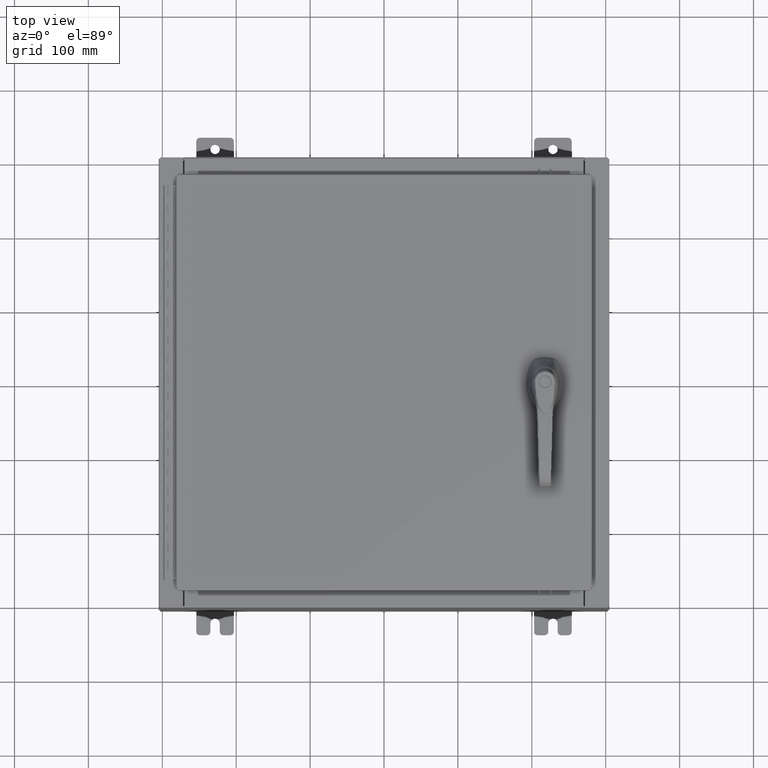
[diagram: clean part render]
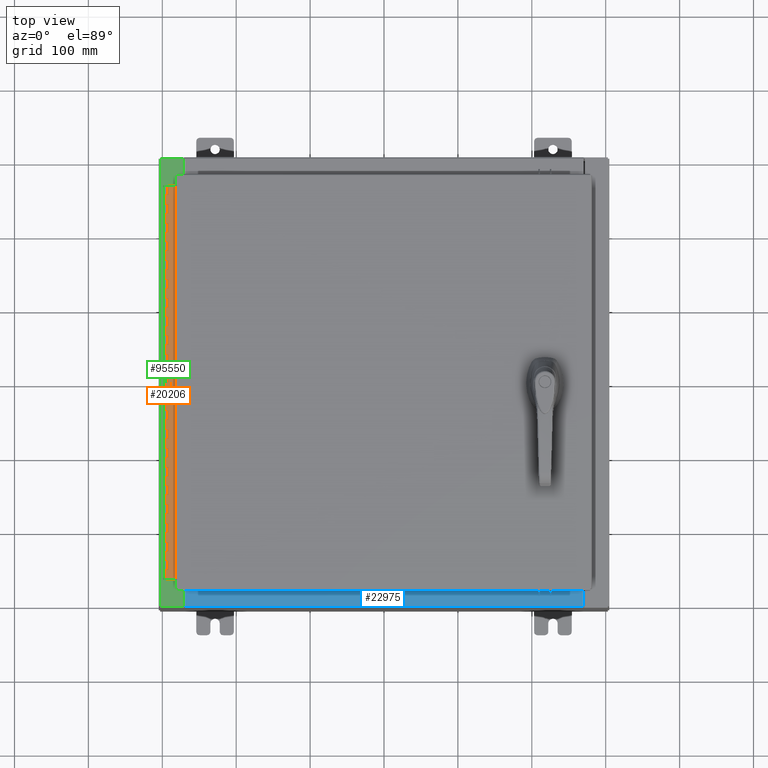
[diagram: same view with three faces highlighted in distinct colors, each labeled with its STEP entity id]
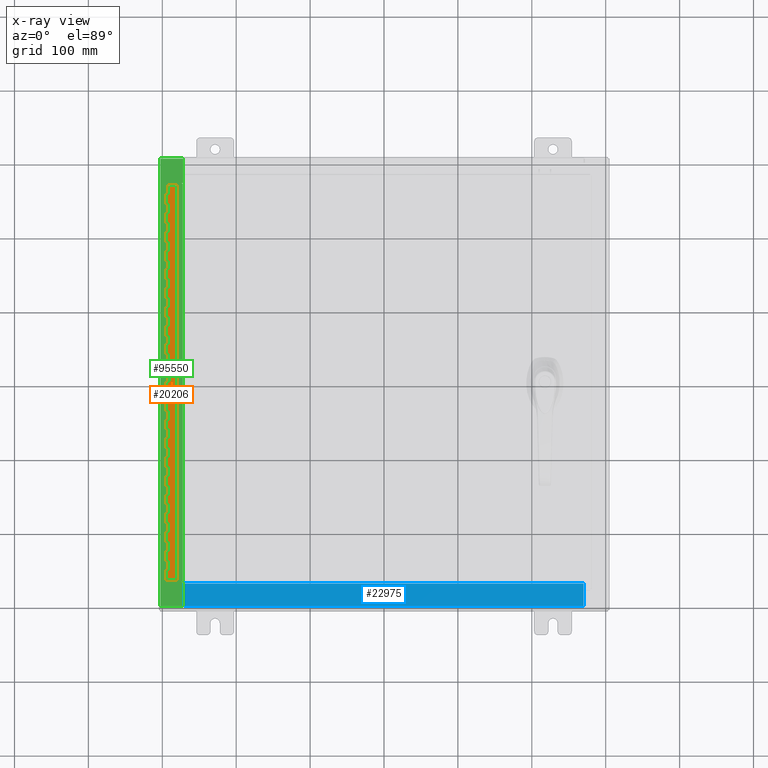
[diagram: x-ray of the same camera — body ghosted, the three highlighted faces saturated]
A machine part, top view with three faces highlighted in distinct colors.
The next image is the same camera in x-ray (body ghosted, the three faces saturated) — at least one of them is partly hidden behind the body in this view.
Their STEP definitions:

[orange] entity #20206 — the highlighted planar face has unit normal (-0, -0, 1).
#487 = EDGE_LOOP ( 'NONE', ( #104713, #79192, #28717, #11747, #99465, #87481, #99655, #96424, #78929, #60696, #97652, #31700, #35424, #110039, #38362, #74757, #55107, #99359, #49436, #80856, #6848, #100603, #17194, #56918, #13902, #101669, #40833, #17931, #82772, #83507, #79073, #49316, #106446, #14870, #39563, #86278, #33803, #62675, #20230, #66479, #107243, #75169, #110660, #63958, #8531, #16885, #104266, #42186, #94255, #105512, #19192, #63513, #2632, #48905, #100723, #110553, #84265, #63669, #68383, #109587, #108424, #71162, #18691, #27247, #89202, #48634, #69188, #57280, #92814, #86869, #19043, #22100, #20004, #47349, #94052, #107989, #1371, #68816, #77054, #94772, #11037, #23610, #66406, #24382, #68171, #63289 ) ) ;
#631 = CARTESIAN_POINT ( 'NONE',  ( -0.6869999999999973900, 0.8004999999999995500, -13.50000000000000000 ) ) ;
#707 = VECTOR ( 'NONE', #15026, 39.37007874015748100 ) ;
#853 = CARTESIAN_POINT ( 'NONE',  ( -0.6869999999999982800, 0.5504999999999997700, -16.00000000000000000 ) ) ;
#1008 = DIRECTION ( 'NONE',  ( 0.0000000000000000000, -0.0000000000000000000, -1.000000000000000000 ) ) ;
#1178 = VECTOR ( 'NONE', #91212, 39.37007874015748100 ) ;
#1349 = VERTEX_POINT ( 'NONE', #34714 ) ;
#1371 = ORIENTED_EDGE ( 'NONE', *, *, #30157, .T. ) ;
#1407 = LINE ( 'NONE', #50277, #90812 ) ;
#1450 = EDGE_CURVE ( 'NONE', #47423, #109354, #48600, .T. ) ;
#1538 = LINE ( 'NONE', #72073, #90951 ) ;
#1683 = LINE ( 'NONE', #14377, #85737 ) ;
#1869 = CARTESIAN_POINT ( 'NONE',  ( -0.6869999999999982800, 0.5504999999999997700, -19.00000000000000000 ) ) ;
#2009 = CARTESIAN_POINT ( 'NONE',  ( -0.6869999999999973900, 0.8004999999999995500, -6.000000000000000900 ) ) ;
#2048 = VERTEX_POINT ( 'NONE', #62749 ) ;
#2070 = CARTESIAN_POINT ( 'NONE',  ( -0.6869999999999973900, 0.8004999999999995500, -0.5000000000000000000 ) ) ;
#2324 = VECTOR ( 'NONE', #75940, 39.37007874015748100 ) ;
#2340 = DIRECTION ( 'NONE',  ( 3.389037039080723100E-015, 1.000000000000000000, -0.0000000000000000000 ) ) ;
#2632 = ORIENTED_EDGE ( 'NONE', *, *, #10474, .T. ) ;
#3060 = VECTOR ( 'NONE', #67879, 39.37007874015748100 ) ;
#3270 = VERTEX_POINT ( 'NONE', #61484 ) ;
#3368 = FACE_OUTER_BOUND ( 'NONE', #487, .T. ) ;
#3393 = CARTESIAN_POINT ( 'NONE',  ( -0.6869999999999973900, 0.8004999999999995500, -17.99999999999999600 ) ) ;
#3962 = CARTESIAN_POINT ( 'NONE',  ( -0.6869999999999978300, 0.6754999999999996600, -6.000000000000000900 ) ) ;
#3964 = VERTEX_POINT ( 'NONE', #97046 ) ;
#4020 = LINE ( 'NONE', #32330, #44752 ) ;
#4190 = CARTESIAN_POINT ( 'NONE',  ( -0.6869999999999982800, 0.5504999999999997700, -14.49999999999999800 ) ) ;
#4234 = VERTEX_POINT ( 'NONE', #56510 ) ;
#4365 = CARTESIAN_POINT ( 'NONE',  ( -0.6869999999999982800, 0.5504999999999997700, -18.50000000000000000 ) ) ;
#4564 = CARTESIAN_POINT ( 'NONE',  ( -0.6869999999999973900, 0.8004999999999995500, -2.999999999999999600 ) ) ;
#4588 = VERTEX_POINT ( 'NONE', #1869 ) ;
#4621 = CARTESIAN_POINT ( 'NONE',  ( -0.6869999999999982800, 0.5504999999999997700, -16.50000000000000000 ) ) ;
#5619 = DIRECTION ( 'NONE',  ( 3.389037039080723100E-015, 1.000000000000000000, -0.0000000000000000000 ) ) ;
#5819 = EDGE_CURVE ( 'NONE', #52758, #45710, #52344, .T. ) ;
#6339 = DIRECTION ( 'NONE',  ( 0.0000000000000000000, 0.0000000000000000000, 1.000000000000000000 ) ) ;
#6591 = VECTOR ( 'NONE', #36233, 39.37007874015748100 ) ;
#6848 = ORIENTED_EDGE ( 'NONE', *, *, #42911, .T. ) ;
#7088 = LINE ( 'NONE', #10528, #70854 ) ;
#7197 = CARTESIAN_POINT ( 'NONE',  ( -0.6869999999999982800, 0.5504999999999997700, -8.500000000000000000 ) ) ;
#7494 = CARTESIAN_POINT ( 'NONE',  ( -0.6869999999999998300, 0.07549999999999991400, 0.0000000000000000000 ) ) ;
#7502 = LINE ( 'NONE', #50721, #96956 ) ;
#7866 = VERTEX_POINT ( 'NONE', #100251 ) ;
#8093 = VERTEX_POINT ( 'NONE', #85913 ) ;
#8221 = LINE ( 'NONE', #54120, #92253 ) ;
#8268 = DIRECTION ( 'NONE',  ( -3.389037039080723100E-015, -1.000000000000000000, 0.0000000000000000000 ) ) ;
#8406 = VERTEX_POINT ( 'NONE', #76664 ) ;
#8531 = ORIENTED_EDGE ( 'NONE', *, *, #58520, .T. ) ;
#8564 = DIRECTION ( 'NONE',  ( 3.369016658928398200E-015, 1.000000000000000000, 0.0000000000000000000 ) ) ;
#9080 = LINE ( 'NONE', #53073, #55200 ) ;
#9275 = CARTESIAN_POINT ( 'NONE',  ( -0.6869999999999978300, 0.6754999999999996600, -20.00000000000000000 ) ) ;
#9366 = CARTESIAN_POINT ( 'NONE',  ( -0.6869999999999982800, 0.5504999999999997700, -7.499999999999999100 ) ) ;
#9386 = LINE ( 'NONE', #48832, #32481 ) ;
#9415 = VERTEX_POINT ( 'NONE', #42736 ) ;
#10008 = EDGE_CURVE ( 'NONE', #59093, #106166, #111466, .T. ) ;
#10474 = EDGE_CURVE ( 'NONE', #47448, #9415, #87058, .T. ) ;
#10528 = CARTESIAN_POINT ( 'NONE',  ( -0.6869999999999973900, 0.8004999999999995500, -11.50000000000000000 ) ) ;
#10626 = DIRECTION ( 'NONE',  ( -3.389037039080723100E-015, -1.000000000000000000, 0.0000000000000000000 ) ) ;
#10874 = LINE ( 'NONE', #37307, #31270 ) ;
#11037 = ORIENTED_EDGE ( 'NONE', *, *, #44848, .T. ) ;
#11181 = VERTEX_POINT ( 'NONE', #4190 ) ;
#11205 = VECTOR ( 'NONE', #62625, 39.37007874015748100 ) ;
#11483 = VERTEX_POINT ( 'NONE', #18464 ) ;
#11747 = ORIENTED_EDGE ( 'NONE', *, *, #97759, .F. ) ;
#11802 = DIRECTION ( 'NONE',  ( 3.389037039080723100E-015, 1.000000000000000000, -0.0000000000000000000 ) ) ;
#12021 = CARTESIAN_POINT ( 'NONE',  ( -0.6869999999999982800, 0.5504999999999997700, -6.000000000000000900 ) ) ;
#12167 = LINE ( 'NONE', #28547, #107099 ) ;
#12279 = EDGE_CURVE ( 'NONE', #88878, #103650, #89678, .T. ) ;
#12326 = LINE ( 'NONE', #72824, #32754 ) ;
#12427 = VERTEX_POINT ( 'NONE', #81185 ) ;
#12474 = EDGE_CURVE ( 'NONE', #36092, #93655, #12326, .T. ) ;
#12730 = EDGE_CURVE ( 'NONE', #59089, #111717, #88297, .T. ) ;
#12761 = CARTESIAN_POINT ( 'NONE',  ( -0.6869999999999978300, 0.6754999999999996600, -21.00000000000000000 ) ) ;
#12981 = CARTESIAN_POINT ( 'NONE',  ( -0.6869999999999978300, 0.6754999999999996600, -14.49999999999999800 ) ) ;
#13432 = CARTESIAN_POINT ( 'NONE',  ( -0.6869999999999982800, 0.5504999999999997700, -6.499999999999999100 ) ) ;
#13575 = CARTESIAN_POINT ( 'NONE',  ( -0.6870000000000022800, -0.6245000000000003900, 0.0000000000000000000 ) ) ;
#13618 = CARTESIAN_POINT ( 'NONE',  ( -0.6869999999999973900, 0.8004999999999995500, -2.000000000000000000 ) ) ;
#13889 = VECTOR ( 'NONE', #108358, 39.37007874015748100 ) ;
#13902 = ORIENTED_EDGE ( 'NONE', *, *, #20251, .T. ) ;
#14037 = DIRECTION ( 'NONE',  ( 0.0000000000000000000, -0.0000000000000000000, -1.000000000000000000 ) ) ;
#14373 = VECTOR ( 'NONE', #57581, 39.37007874015748100 ) ;
#14377 = CARTESIAN_POINT ( 'NONE',  ( -0.6869999999999973900, 0.8004999999999995500, -1.499999999999999800 ) ) ;
#14763 = DIRECTION ( 'NONE',  ( 0.0000000000000000000, 0.0000000000000000000, 1.000000000000000000 ) ) ;
#14870 = ORIENTED_EDGE ( 'NONE', *, *, #30292, .F. ) ;
#14893 = DIRECTION ( 'NONE',  ( 0.0000000000000000000, 0.0000000000000000000, 1.000000000000000000 ) ) ;
#14980 = CARTESIAN_POINT ( 'NONE',  ( -0.6869999999999982800, 0.5504999999999997700, -20.50000000000000400 ) ) ;
#15026 = DIRECTION ( 'NONE',  ( 0.0000000000000000000, 0.0000000000000000000, 1.000000000000000000 ) ) ;
#15183 = CARTESIAN_POINT ( 'NONE',  ( -0.6869999999999978300, 0.6754999999999996600, -18.50000000000000000 ) ) ;
#15242 = CARTESIAN_POINT ( 'NONE',  ( -0.6869999999999973900, 0.8004999999999995500, -11.99999999999999800 ) ) ;
#15393 = CARTESIAN_POINT ( 'NONE',  ( -0.6869999999999973900, 0.8004999999999995500, -6.499999999999999100 ) ) ;
#15395 = LINE ( 'NONE', #58017, #38485 ) ;
#15495 = CARTESIAN_POINT ( 'NONE',  ( -0.6869999999999978300, 0.6754999999999996600, 0.0000000000000000000 ) ) ;
#15510 = VERTEX_POINT ( 'NONE', #9366 ) ;
#15873 = DIRECTION ( 'NONE',  ( 0.0000000000000000000, 0.0000000000000000000, 1.000000000000000000 ) ) ;
#15877 = VECTOR ( 'NONE', #23906, 39.37007874015748100 ) ;
#16118 = DIRECTION ( 'NONE',  ( 3.389037039080723100E-015, 1.000000000000000000, -0.0000000000000000000 ) ) ;
#16142 = LINE ( 'NONE', #3393, #88053 ) ;
#16162 = EDGE_CURVE ( 'NONE', #70152, #103650, #45883, .T. ) ;
#16329 = VERTEX_POINT ( 'NONE', #79261 ) ;
#16401 = VERTEX_POINT ( 'NONE', #96947 ) ;
#16476 = LINE ( 'NONE', #54774, #39569 ) ;
#16707 = CARTESIAN_POINT ( 'NONE',  ( -0.6869999999999982800, 0.5504999999999997700, -10.50000000000000000 ) ) ;
#16767 = CARTESIAN_POINT ( 'NONE',  ( -0.6869999999999973900, 0.8004999999999995500, -16.00000000000000000 ) ) ;
#16885 = ORIENTED_EDGE ( 'NONE', *, *, #46594, .F. ) ;
#17194 = ORIENTED_EDGE ( 'NONE', *, *, #20285, .F. ) ;
#17362 = VERTEX_POINT ( 'NONE', #38434 ) ;
#17420 = EDGE_CURVE ( 'NONE', #27447, #68941, #93165, .T. ) ;
#17527 = CARTESIAN_POINT ( 'NONE',  ( -0.6869999999999978300, 0.6754999999999996600, -21.00000000000000000 ) ) ;
#17564 = LINE ( 'NONE', #73483, #107000 ) ;
#17695 = DIRECTION ( 'NONE',  ( 0.0000000000000000000, -0.0000000000000000000, -1.000000000000000000 ) ) ;
#17876 = VECTOR ( 'NONE', #6339, 39.37007874015748100 ) ;
#17931 = ORIENTED_EDGE ( 'NONE', *, *, #69796, .F. ) ;
#18119 = CARTESIAN_POINT ( 'NONE',  ( -0.6869999999999978300, 0.6754999999999996600, -14.99999999999999800 ) ) ;
#18237 = CARTESIAN_POINT ( 'NONE',  ( -0.6869999999999978300, 0.6754999999999996600, -2.000000000000000000 ) ) ;
#18464 = CARTESIAN_POINT ( 'NONE',  ( -0.6869999999999978300, 0.6754999999999996600, -1.000000000000000000 ) ) ;
#18536 = LINE ( 'NONE', #112374, #61932 ) ;
#18691 = ORIENTED_EDGE ( 'NONE', *, *, #101673, .F. ) ;
#18757 = VECTOR ( 'NONE', #76055, 39.37007874015748100 ) ;
#19004 = LINE ( 'NONE', #77567, #85470 ) ;
#19043 = ORIENTED_EDGE ( 'NONE', *, *, #85372, .F. ) ;
#19192 = ORIENTED_EDGE ( 'NONE', *, *, #22866, .F. ) ;
#19204 = VECTOR ( 'NONE', #82742, 39.37007874015748100 ) ;
#19213 = DIRECTION ( 'NONE',  ( 0.0000000000000000000, 0.0000000000000000000, 1.000000000000000000 ) ) ;
#19320 = CARTESIAN_POINT ( 'NONE',  ( -0.6869999999999978300, 0.6754999999999996600, -3.500000000000000000 ) ) ;
#19658 = EDGE_CURVE ( 'NONE', #76483, #65155, #7502, .T. ) ;
#20004 = ORIENTED_EDGE ( 'NONE', *, *, #19658, .T. ) ;
#20090 = VECTOR ( 'NONE', #56169, 39.37007874015748100 ) ;
#20206 = ADVANCED_FACE ( 'NONE', ( #3368 ), #29853, .T. ) ;
#20230 = ORIENTED_EDGE ( 'NONE', *, *, #103175, .F. ) ;
#20251 = EDGE_CURVE ( 'NONE', #3270, #68941, #69883, .T. ) ;
#20285 = EDGE_CURVE ( 'NONE', #83688, #60570, #90121, .T. ) ;
#20394 = DIRECTION ( 'NONE',  ( 3.389037039080723100E-015, 1.000000000000000000, -0.0000000000000000000 ) ) ;
#20483 = EDGE_CURVE ( 'NONE', #17362, #47423, #41370, .T. ) ;
#21046 = CARTESIAN_POINT ( 'NONE',  ( -0.6869999999999978300, 0.6754999999999996600, -0.5000000000000000000 ) ) ;
#21142 = VECTOR ( 'NONE', #32569, 39.37007874015748100 ) ;
#21428 = EDGE_CURVE ( 'NONE', #17362, #98217, #79239, .T. ) ;
#21838 = CARTESIAN_POINT ( 'NONE',  ( -0.6869999999999982800, 0.5504999999999997700, -17.50000000000000000 ) ) ;
#21942 = VECTOR ( 'NONE', #1008, 39.37007874015748100 ) ;
#21948 = CARTESIAN_POINT ( 'NONE',  ( -0.6869999999999982800, 0.5504999999999997700, -7.000000000000000000 ) ) ;
#22100 = ORIENTED_EDGE ( 'NONE', *, *, #88375, .F. ) ;
#22128 = EDGE_CURVE ( 'NONE', #75201, #80545, #41169, .T. ) ;
#22161 = EDGE_CURVE ( 'NONE', #2048, #53623, #81789, .T. ) ;
#22641 = EDGE_CURVE ( 'NONE', #41656, #65155, #103395, .T. ) ;
#22779 = CARTESIAN_POINT ( 'NONE',  ( -0.6869999999999982800, 0.5504999999999997700, -17.50000000000000000 ) ) ;
#22866 = EDGE_CURVE ( 'NONE', #64265, #83467, #46448, .T. ) ;
#23303 = EDGE_CURVE ( 'NONE', #43584, #45477, #7088, .T. ) ;
#23437 = EDGE_CURVE ( 'NONE', #83780, #36563, #1683, .T. ) ;
#23610 = ORIENTED_EDGE ( 'NONE', *, *, #33268, .F. ) ;
#23906 = DIRECTION ( 'NONE',  ( 0.0000000000000000000, -0.0000000000000000000, -1.000000000000000000 ) ) ;
#24016 = DIRECTION ( 'NONE',  ( 3.389037039080723100E-015, 1.000000000000000000, -0.0000000000000000000 ) ) ;
#24382 = ORIENTED_EDGE ( 'NONE', *, *, #57289, .F. ) ;
#24911 = CARTESIAN_POINT ( 'NONE',  ( -0.6869999999999982800, 0.5504999999999997700, -11.99999999999999800 ) ) ;
#25385 = LINE ( 'NONE', #15242, #94501 ) ;
#26073 = VECTOR ( 'NONE', #28908, 39.37007874015748100 ) ;
#26283 = CARTESIAN_POINT ( 'NONE',  ( -0.6869999999999978300, 0.6754999999999996600, -2.500000000000000000 ) ) ;
#26441 = CARTESIAN_POINT ( 'NONE',  ( -0.6869999999999982800, 0.5504999999999997700, -13.50000000000000000 ) ) ;
#26474 = VECTOR ( 'NONE', #50313, 39.37007874015748100 ) ;
#26490 = VECTOR ( 'NONE', #99546, 39.37007874015748100 ) ;
#26635 = VERTEX_POINT ( 'NONE', #74531 ) ;
#26682 = DIRECTION ( 'NONE',  ( 0.0000000000000000000, 0.0000000000000000000, 1.000000000000000000 ) ) ;
#26796 = VECTOR ( 'NONE', #72899, 39.37007874015748100 ) ;
#26852 = EDGE_CURVE ( 'NONE', #45677, #65156, #45083, .T. ) ;
#26939 = DIRECTION ( 'NONE',  ( 0.0000000000000000000, 0.0000000000000000000, 1.000000000000000000 ) ) ;
#27019 = VERTEX_POINT ( 'NONE', #40147 ) ;
#27097 = AXIS2_PLACEMENT_3D ( 'NONE', #62504, #47289, #107884 ) ;
#27247 = ORIENTED_EDGE ( 'NONE', *, *, #12474, .F. ) ;
#27426 = LINE ( 'NONE', #74743, #32859 ) ;
#27447 = VERTEX_POINT ( 'NONE', #104448 ) ;
#27547 = CARTESIAN_POINT ( 'NONE',  ( -0.6869999999999973900, 0.8004999999999995500, -9.500000000000000000 ) ) ;
#27577 = CARTESIAN_POINT ( 'NONE',  ( -0.6869999999999973900, 0.8004999999999995500, -14.00000000000000000 ) ) ;
#27764 = EDGE_CURVE ( 'NONE', #1349, #28549, #88349, .T. ) ;
#27960 = VECTOR ( 'NONE', #34290, 39.37007874015748100 ) ;
#27995 = DIRECTION ( 'NONE',  ( 0.0000000000000000000, -0.0000000000000000000, -1.000000000000000000 ) ) ;
#28206 = CARTESIAN_POINT ( 'NONE',  ( -0.6869999999999978300, 0.6754999999999996600, -9.000000000000000000 ) ) ;
#28252 = EDGE_CURVE ( 'NONE', #35863, #8406, #84260, .T. ) ;
#28424 = CARTESIAN_POINT ( 'NONE',  ( -0.6869999999999978300, 0.6754999999999996600, -12.49999999999999800 ) ) ;
#28547 = CARTESIAN_POINT ( 'NONE',  ( -0.6869999999999973900, 0.8004999999999995500, -19.00000000000000000 ) ) ;
#28549 = VERTEX_POINT ( 'NONE', #16707 ) ;
#28717 = ORIENTED_EDGE ( 'NONE', *, *, #93454, .F. ) ;
#28862 = DIRECTION ( 'NONE',  ( 3.389037039080723100E-015, 1.000000000000000000, -0.0000000000000000000 ) ) ;
#28908 = DIRECTION ( 'NONE',  ( -3.389037039080723100E-015, -1.000000000000000000, 0.0000000000000000000 ) ) ;
#29421 = EDGE_CURVE ( 'NONE', #4588, #32556, #12167, .T. ) ;
#29853 = PLANE ( 'NONE',  #27097 ) ;
#29978 = CARTESIAN_POINT ( 'NONE',  ( -0.6869999999999982800, 0.5504999999999997700, -10.00000000000000000 ) ) ;
#30105 = VERTEX_POINT ( 'NONE', #47316 ) ;
#30157 = EDGE_CURVE ( 'NONE', #35279, #91237, #17564, .T. ) ;
#30292 = EDGE_CURVE ( 'NONE', #70271, #16401, #9386, .T. ) ;
#30325 = VECTOR ( 'NONE', #102173, 39.37007874015748100 ) ;
#31237 = EDGE_CURVE ( 'NONE', #4234, #110189, #47236, .T. ) ;
#31270 = VECTOR ( 'NONE', #106573, 39.37007874015748100 ) ;
#31363 = VERTEX_POINT ( 'NONE', #93108 ) ;
#31475 = CARTESIAN_POINT ( 'NONE',  ( -0.6869999999999982800, 0.5504999999999997700, -8.000000000000000000 ) ) ;
#31700 = ORIENTED_EDGE ( 'NONE', *, *, #64639, .F. ) ;
#31877 = DIRECTION ( 'NONE',  ( -3.389037039080723100E-015, -1.000000000000000000, 0.0000000000000000000 ) ) ;
#32330 = CARTESIAN_POINT ( 'NONE',  ( -0.6869999999999973900, 0.8004999999999995500, -19.50000000000000000 ) ) ;
#32481 = VECTOR ( 'NONE', #5619, 39.37007874015748100 ) ;
#32556 = VERTEX_POINT ( 'NONE', #83083 ) ;
#32569 = DIRECTION ( 'NONE',  ( 0.0000000000000000000, -0.0000000000000000000, -1.000000000000000000 ) ) ;
#32746 = CARTESIAN_POINT ( 'NONE',  ( -0.6869999999999973900, 0.8004999999999995500, -12.49999999999999800 ) ) ;
#32754 = VECTOR ( 'NONE', #31877, 39.37007874015748100 ) ;
#32859 = VECTOR ( 'NONE', #14037, 39.37007874015748100 ) ;
#32963 = EDGE_CURVE ( 'NONE', #69233, #84363, #9080, .T. ) ;
#33268 = EDGE_CURVE ( 'NONE', #110189, #11483, #44363, .T. ) ;
#33729 = EDGE_CURVE ( 'NONE', #55058, #84363, #109307, .T. ) ;
#33784 = EDGE_CURVE ( 'NONE', #47448, #64265, #106582, .T. ) ;
#33803 = ORIENTED_EDGE ( 'NONE', *, *, #112043, .T. ) ;
#34117 = VERTEX_POINT ( 'NONE', #92429 ) ;
#34290 = DIRECTION ( 'NONE',  ( 0.0000000000000000000, -0.0000000000000000000, -1.000000000000000000 ) ) ;
#34604 = EDGE_CURVE ( 'NONE', #36563, #30105, #86218, .T. ) ;
#34714 = CARTESIAN_POINT ( 'NONE',  ( -0.6869999999999978300, 0.6754999999999996600, -10.50000000000000000 ) ) ;
#35279 = VERTEX_POINT ( 'NONE', #26283 ) ;
#35424 = ORIENTED_EDGE ( 'NONE', *, *, #5819, .T. ) ;
#35863 = VERTEX_POINT ( 'NONE', #58282 ) ;
#36092 = VERTEX_POINT ( 'NONE', #46429 ) ;
#36203 = VECTOR ( 'NONE', #53805, 39.37007874015748100 ) ;
#36233 = DIRECTION ( 'NONE',  ( 3.389037039080723100E-015, 1.000000000000000000, -0.0000000000000000000 ) ) ;
#36319 = DIRECTION ( 'NONE',  ( 0.0000000000000000000, 0.0000000000000000000, 1.000000000000000000 ) ) ;
#36563 = VERTEX_POINT ( 'NONE', #84174 ) ;
#37307 = CARTESIAN_POINT ( 'NONE',  ( -0.6869999999999978300, 0.6754999999999996600, -21.00000000000000000 ) ) ;
#37650 = VERTEX_POINT ( 'NONE', #67672 ) ;
#37844 = VECTOR ( 'NONE', #17695, 39.37007874015748100 ) ;
#38126 = DIRECTION ( 'NONE',  ( 3.389037039080723100E-015, 1.000000000000000000, -0.0000000000000000000 ) ) ;
#38362 = ORIENTED_EDGE ( 'NONE', *, *, #61856, .F. ) ;
#38434 = CARTESIAN_POINT ( 'NONE',  ( -0.6869999999999978300, 0.6754999999999996600, -9.500000000000000000 ) ) ;
#38485 = VECTOR ( 'NONE', #14763, 39.37007874015748100 ) ;
#38489 = DIRECTION ( 'NONE',  ( -3.389037039080723100E-015, -1.000000000000000000, 0.0000000000000000000 ) ) ;
#38550 = CARTESIAN_POINT ( 'NONE',  ( -0.6869999999999982800, 0.5504999999999997700, -5.500000000000000000 ) ) ;
#38646 = LINE ( 'NONE', #92750, #82031 ) ;
#38803 = LINE ( 'NONE', #84514, #21142 ) ;
#38884 = DIRECTION ( 'NONE',  ( 0.0000000000000000000, -0.0000000000000000000, -1.000000000000000000 ) ) ;
#39007 = CARTESIAN_POINT ( 'NONE',  ( -0.6869999999999978300, 0.6754999999999996600, -21.00000000000000000 ) ) ;
#39306 = EDGE_CURVE ( 'NONE', #83467, #98217, #73031, .T. ) ;
#39362 = CARTESIAN_POINT ( 'NONE',  ( -0.6869999999999982800, 0.5504999999999997700, -0.5000000000000000000 ) ) ;
#39489 = LINE ( 'NONE', #100379, #82852 ) ;
#39563 = ORIENTED_EDGE ( 'NONE', *, *, #85430, .F. ) ;
#39569 = VECTOR ( 'NONE', #88497, 39.37007874015748100 ) ;
#39629 = VECTOR ( 'NONE', #96788, 39.37007874015748100 ) ;
#40147 = CARTESIAN_POINT ( 'NONE',  ( -0.6869999999999982800, 0.5504999999999997700, -17.00000000000000000 ) ) ;
#40563 = CARTESIAN_POINT ( 'NONE',  ( -0.6869999999999982800, 0.5504999999999997700, -11.50000000000000000 ) ) ;
#40829 = LINE ( 'NONE', #41543, #109913 ) ;
#40833 = ORIENTED_EDGE ( 'NONE', *, *, #80476, .F. ) ;
#41169 = LINE ( 'NONE', #110022, #84550 ) ;
#41213 = CARTESIAN_POINT ( 'NONE',  ( -0.6869999999999978300, 0.6754999999999996600, -20.50000000000000400 ) ) ;
#41291 = LINE ( 'NONE', #68955, #104945 ) ;
#41370 = LINE ( 'NONE', #27547, #99536 ) ;
#41463 = CARTESIAN_POINT ( 'NONE',  ( -0.6869999999999998300, 0.07549999999999991400, -21.00000000000000000 ) ) ;
#41478 = LINE ( 'NONE', #88181, #61782 ) ;
#41543 = CARTESIAN_POINT ( 'NONE',  ( -0.6869999999999982800, 0.5504999999999997700, -19.50000000000000000 ) ) ;
#41646 = VECTOR ( 'NONE', #38126, 39.37007874015748100 ) ;
#41656 = VERTEX_POINT ( 'NONE', #75568 ) ;
#41914 = CARTESIAN_POINT ( 'NONE',  ( -0.6869999999999978300, 0.6754999999999996600, -19.50000000000000000 ) ) ;
#41931 = CARTESIAN_POINT ( 'NONE',  ( -0.6869999999999978300, 0.6754999999999996600, -21.00000000000000000 ) ) ;
#42186 = ORIENTED_EDGE ( 'NONE', *, *, #20483, .F. ) ;
#42202 = EDGE_CURVE ( 'NONE', #37650, #41656, #38803, .T. ) ;
#42226 = VECTOR ( 'NONE', #51062, 39.37007874015748100 ) ;
#42736 = CARTESIAN_POINT ( 'NONE',  ( -0.6869999999999978300, 0.6754999999999996600, -8.000000000000000000 ) ) ;
#42911 = EDGE_CURVE ( 'NONE', #75201, #98842, #90187, .T. ) ;
#43139 = CARTESIAN_POINT ( 'NONE',  ( -0.6869999999999978300, 0.6754999999999996600, -2.999999999999999600 ) ) ;
#43200 = VECTOR ( 'NONE', #96377, 39.37007874015748100 ) ;
#43584 = VERTEX_POINT ( 'NONE', #85616 ) ;
#43607 = CARTESIAN_POINT ( 'NONE',  ( -0.6869999999999973900, 0.8004999999999995500, -7.499999999999999100 ) ) ;
#43657 = VECTOR ( 'NONE', #26682, 39.37007874015748100 ) ;
#44063 = CARTESIAN_POINT ( 'NONE',  ( -0.6869999999999978300, 0.6754999999999996600, -21.00000000000000000 ) ) ;
#44363 = LINE ( 'NONE', #89992, #41646 ) ;
#44587 = CARTESIAN_POINT ( 'NONE',  ( -0.6869999999999982800, 0.5504999999999997700, -9.000000000000000000 ) ) ;
#44752 = VECTOR ( 'NONE', #49777, 39.37007874015748100 ) ;
#44848 = EDGE_CURVE ( 'NONE', #83780, #11483, #15395, .T. ) ;
#45017 = EDGE_CURVE ( 'NONE', #91935, #12427, #50679, .T. ) ;
#45046 = LINE ( 'NONE', #87389, #21942 ) ;
#45083 = LINE ( 'NONE', #102474, #108733 ) ;
#45477 = VERTEX_POINT ( 'NONE', #72924 ) ;
#45664 = CARTESIAN_POINT ( 'NONE',  ( -0.6869999999999978300, 0.6754999999999996600, -17.00000000000000000 ) ) ;
#45677 = VERTEX_POINT ( 'NONE', #50543 ) ;
#45710 = VERTEX_POINT ( 'NONE', #76709 ) ;
#45807 = LINE ( 'NONE', #38550, #112226 ) ;
#45883 = LINE ( 'NONE', #47445, #20090 ) ;
#45985 = LINE ( 'NONE', #26441, #37844 ) ;
#46266 = DIRECTION ( 'NONE',  ( 0.0000000000000000000, -0.0000000000000000000, -1.000000000000000000 ) ) ;
#46429 = CARTESIAN_POINT ( 'NONE',  ( -0.6869999999999978300, 0.6754999999999996600, -5.500000000000000000 ) ) ;
#46448 = LINE ( 'NONE', #7197, #3060 ) ;
#46594 = EDGE_CURVE ( 'NONE', #109354, #3964, #110114, .T. ) ;
#46863 = EDGE_CURVE ( 'NONE', #80545, #27019, #27426, .T. ) ;
#47236 = LINE ( 'NONE', #39362, #1178 ) ;
#47289 = DIRECTION ( 'NONE',  ( 1.000000000000000000, -3.369016658928398200E-015, 0.0000000000000000000 ) ) ;
#47316 = CARTESIAN_POINT ( 'NONE',  ( -0.6869999999999982800, 0.5504999999999997700, -2.000000000000000000 ) ) ;
#47349 = ORIENTED_EDGE ( 'NONE', *, *, #22641, .F. ) ;
#47423 = VERTEX_POINT ( 'NONE', #99569 ) ;
#47445 = CARTESIAN_POINT ( 'NONE',  ( -0.6869999999999973900, 0.8004999999999995500, -20.00000000000000000 ) ) ;
#47448 = VERTEX_POINT ( 'NONE', #47723 ) ;
#47699 = DIRECTION ( 'NONE',  ( 0.0000000000000000000, 0.0000000000000000000, 1.000000000000000000 ) ) ;
#47723 = CARTESIAN_POINT ( 'NONE',  ( -0.6869999999999978300, 0.6754999999999996600, -8.500000000000000000 ) ) ;
#48600 = LINE ( 'NONE', #52851, #43200 ) ;
#48634 = ORIENTED_EDGE ( 'NONE', *, *, #28252, .F. ) ;
#48696 = CARTESIAN_POINT ( 'NONE',  ( -0.6869999999999982800, 0.5504999999999997700, -21.00000000000000000 ) ) ;
#48832 = CARTESIAN_POINT ( 'NONE',  ( -0.6869999999999973900, 0.8004999999999995500, -12.99999999999999800 ) ) ;
#48905 = ORIENTED_EDGE ( 'NONE', *, *, #66466, .F. ) ;
#49087 = VECTOR ( 'NONE', #89462, 39.37007874015748100 ) ;
#49105 = LINE ( 'NONE', #72129, #26073 ) ;
#49316 = ORIENTED_EDGE ( 'NONE', *, *, #89174, .F. ) ;
#49436 = ORIENTED_EDGE ( 'NONE', *, *, #46863, .F. ) ;
#49538 = LINE ( 'NONE', #39007, #26490 ) ;
#49559 = DIRECTION ( 'NONE',  ( -3.389037039080723100E-015, -1.000000000000000000, 0.0000000000000000000 ) ) ;
#49777 = DIRECTION ( 'NONE',  ( -3.389037039080723100E-015, -1.000000000000000000, 0.0000000000000000000 ) ) ;
#50002 = LINE ( 'NONE', #4365, #70372 ) ;
#50277 = CARTESIAN_POINT ( 'NONE',  ( -0.6869999999999973900, 0.8004999999999995500, -11.00000000000000000 ) ) ;
#50313 = DIRECTION ( 'NONE',  ( 0.0000000000000000000, -0.0000000000000000000, -1.000000000000000000 ) ) ;
#50399 = CARTESIAN_POINT ( 'NONE',  ( -0.6869999999999978300, 0.6754999999999996600, -21.00000000000000000 ) ) ;
#50429 = CARTESIAN_POINT ( 'NONE',  ( -0.6869999999999982800, 0.5504999999999997700, -4.500000000000000000 ) ) ;
#50543 = CARTESIAN_POINT ( 'NONE',  ( -0.6869999999999982800, 0.5504999999999997700, -4.000000000000000000 ) ) ;
#50627 = DIRECTION ( 'NONE',  ( 0.0000000000000000000, 0.0000000000000000000, 1.000000000000000000 ) ) ;
#50679 = LINE ( 'NONE', #92709, #73717 ) ;
#50721 = CARTESIAN_POINT ( 'NONE',  ( -0.6869999999999978300, 0.6754999999999996600, -21.00000000000000000 ) ) ;
#51062 = DIRECTION ( 'NONE',  ( -3.389037039080723100E-015, -1.000000000000000000, 0.0000000000000000000 ) ) ;
#52167 = VERTEX_POINT ( 'NONE', #79600 ) ;
#52344 = LINE ( 'NONE', #79920, #72653 ) ;
#52758 = VERTEX_POINT ( 'NONE', #15183 ) ;
#52851 = CARTESIAN_POINT ( 'NONE',  ( -0.6869999999999982800, 0.5504999999999997700, -9.500000000000000000 ) ) ;
#52920 = CARTESIAN_POINT ( 'NONE',  ( -0.6869999999999982800, 0.5504999999999997700, -1.000000000000000000 ) ) ;
#53073 = CARTESIAN_POINT ( 'NONE',  ( -0.6869999999999978300, 0.6754999999999996600, -21.00000000000000000 ) ) ;
#53623 = VERTEX_POINT ( 'NONE', #3962 ) ;
#53642 = VECTOR ( 'NONE', #46266, 39.37007874015748100 ) ;
#53772 = DIRECTION ( 'NONE',  ( -3.389037039080723100E-015, -1.000000000000000000, 0.0000000000000000000 ) ) ;
#53805 = DIRECTION ( 'NONE',  ( -3.389037039080723100E-015, -1.000000000000000000, 0.0000000000000000000 ) ) ;
#53813 = CARTESIAN_POINT ( 'NONE',  ( -0.6869999999999982800, 0.5504999999999997700, -20.00000000000000000 ) ) ;
#54120 = CARTESIAN_POINT ( 'NONE',  ( -0.6869999999999982800, 0.5504999999999997700, -10.50000000000000000 ) ) ;
#54196 = CARTESIAN_POINT ( 'NONE',  ( -0.6869999999999978300, 0.6754999999999996600, -17.50000000000000000 ) ) ;
#54316 = VECTOR ( 'NONE', #88808, 39.37007874015748100 ) ;
#54603 = VECTOR ( 'NONE', #95443, 39.37007874015748100 ) ;
#54643 = CARTESIAN_POINT ( 'NONE',  ( -0.6869999999999982800, 0.5504999999999997700, -8.500000000000000000 ) ) ;
#54712 = CARTESIAN_POINT ( 'NONE',  ( -0.6869999999999973900, 0.8004999999999995500, -5.000000000000000000 ) ) ;
#54774 = CARTESIAN_POINT ( 'NONE',  ( -0.6869999999999982800, 0.5504999999999997700, -6.499999999999999100 ) ) ;
#54826 = LINE ( 'NONE', #102119, #100862 ) ;
#55058 = VERTEX_POINT ( 'NONE', #7494 ) ;
#55107 = ORIENTED_EDGE ( 'NONE', *, *, #66206, .T. ) ;
#55200 = VECTOR ( 'NONE', #26939, 39.37007874015748100 ) ;
#55991 = VECTOR ( 'NONE', #15873, 39.37007874015748100 ) ;
#56138 = VECTOR ( 'NONE', #2340, 39.37007874015748100 ) ;
#56169 = DIRECTION ( 'NONE',  ( 3.389037039080723100E-015, 1.000000000000000000, -0.0000000000000000000 ) ) ;
#56235 = CARTESIAN_POINT ( 'NONE',  ( -0.6869999999999982800, 0.5504999999999997700, -20.50000000000000400 ) ) ;
#56458 = VECTOR ( 'NONE', #56468, 39.37007874015748100 ) ;
#56468 = DIRECTION ( 'NONE',  ( 0.0000000000000000000, -0.0000000000000000000, -1.000000000000000000 ) ) ;
#56510 = CARTESIAN_POINT ( 'NONE',  ( -0.6869999999999982800, 0.5504999999999997700, -0.5000000000000000000 ) ) ;
#56918 = ORIENTED_EDGE ( 'NONE', *, *, #92547, .F. ) ;
#57280 = ORIENTED_EDGE ( 'NONE', *, *, #45017, .F. ) ;
#57289 = EDGE_CURVE ( 'NONE', #69233, #4234, #79042, .T. ) ;
#57581 = DIRECTION ( 'NONE',  ( -3.389037039080723100E-015, -1.000000000000000000, 0.0000000000000000000 ) ) ;
#57882 = EDGE_CURVE ( 'NONE', #35279, #37650, #92420, .T. ) ;
#57952 = LINE ( 'NONE', #93705, #78346 ) ;
#58017 = CARTESIAN_POINT ( 'NONE',  ( -0.6869999999999978300, 0.6754999999999996600, -21.00000000000000000 ) ) ;
#58282 = CARTESIAN_POINT ( 'NONE',  ( -0.6869999999999982800, 0.5504999999999997700, -5.000000000000000000 ) ) ;
#58287 = CARTESIAN_POINT ( 'NONE',  ( -0.6869999999999982800, 0.5504999999999997700, -13.50000000000000000 ) ) ;
#58520 = EDGE_CURVE ( 'NONE', #1349, #3964, #111343, .T. ) ;
#59089 = VERTEX_POINT ( 'NONE', #54196 ) ;
#59093 = VERTEX_POINT ( 'NONE', #28424 ) ;
#59220 = LINE ( 'NONE', #96945, #36203 ) ;
#59221 = LINE ( 'NONE', #40563, #56458 ) ;
#59284 = LINE ( 'NONE', #13618, #62003 ) ;
#59324 = DIRECTION ( 'NONE',  ( 3.389037039080723100E-015, 1.000000000000000000, -0.0000000000000000000 ) ) ;
#60121 = CARTESIAN_POINT ( 'NONE',  ( -0.6869999999999978300, 0.6754999999999996600, -7.000000000000000000 ) ) ;
#60328 = EDGE_CURVE ( 'NONE', #81677, #92556, #4020, .T. ) ;
#60570 = VERTEX_POINT ( 'NONE', #853 ) ;
#60696 = ORIENTED_EDGE ( 'NONE', *, *, #29421, .F. ) ;
#60837 = EDGE_CURVE ( 'NONE', #7866, #34117, #89401, .T. ) ;
#60844 = VECTOR ( 'NONE', #92098, 39.37007874015748100 ) ;
#61065 = VERTEX_POINT ( 'NONE', #48696 ) ;
#61187 = VECTOR ( 'NONE', #106567, 39.37007874015748100 ) ;
#61474 = VECTOR ( 'NONE', #14893, 39.37007874015748100 ) ;
#61484 = CARTESIAN_POINT ( 'NONE',  ( -0.6869999999999978300, 0.6754999999999996600, -15.50000000000000000 ) ) ;
#61782 = VECTOR ( 'NONE', #36319, 39.37007874015748100 ) ;
#61856 = EDGE_CURVE ( 'NONE', #111717, #87176, #83922, .T. ) ;
#61932 = VECTOR ( 'NONE', #8564, 39.37007874015748100 ) ;
#62003 = VECTOR ( 'NONE', #74349, 39.37007874015748100 ) ;
#62372 = DIRECTION ( 'NONE',  ( -3.389037039080723100E-015, -1.000000000000000000, 0.0000000000000000000 ) ) ;
#62504 = CARTESIAN_POINT ( 'NONE',  ( -0.6870000000000022800, -0.6245000000000003900, -21.00000000000000000 ) ) ;
#62576 = VECTOR ( 'NONE', #38489, 39.37007874015748100 ) ;
#62589 = CARTESIAN_POINT ( 'NONE',  ( -0.6869999999999982800, 0.5504999999999997700, -19.50000000000000000 ) ) ;
#62625 = DIRECTION ( 'NONE',  ( 3.389037039080723100E-015, 1.000000000000000000, -0.0000000000000000000 ) ) ;
#62648 = LINE ( 'NONE', #88122, #39629 ) ;
#62675 = ORIENTED_EDGE ( 'NONE', *, *, #102580, .F. ) ;
#62692 = DIRECTION ( 'NONE',  ( -3.389037039080723100E-015, -1.000000000000000000, 0.0000000000000000000 ) ) ;
#62749 = CARTESIAN_POINT ( 'NONE',  ( -0.6869999999999978300, 0.6754999999999996600, -6.499999999999999100 ) ) ;
#63124 = VECTOR ( 'NONE', #71199, 39.37007874015748100 ) ;
#63177 = VERTEX_POINT ( 'NONE', #24911 ) ;
#63289 = ORIENTED_EDGE ( 'NONE', *, *, #33729, .F. ) ;
#63513 = ORIENTED_EDGE ( 'NONE', *, *, #33784, .F. ) ;
#63669 = ORIENTED_EDGE ( 'NONE', *, *, #88225, .F. ) ;
#63868 = LINE ( 'NONE', #16767, #92361 ) ;
#63869 = CARTESIAN_POINT ( 'NONE',  ( -0.6869999999999978300, 0.6754999999999996600, -16.50000000000000000 ) ) ;
#63958 = ORIENTED_EDGE ( 'NONE', *, *, #27764, .F. ) ;
#64000 = VECTOR ( 'NONE', #20394, 39.37007874015748100 ) ;
#64003 = DIRECTION ( 'NONE',  ( 3.389037039080723100E-015, 1.000000000000000000, -0.0000000000000000000 ) ) ;
#64265 = VERTEX_POINT ( 'NONE', #54643 ) ;
#64559 = CARTESIAN_POINT ( 'NONE',  ( -0.6869999999999982800, 0.5504999999999997700, -15.50000000000000000 ) ) ;
#64639 = EDGE_CURVE ( 'NONE', #52758, #8093, #59220, .T. ) ;
#64703 = LINE ( 'NONE', #50429, #15877 ) ;
#64813 = LINE ( 'NONE', #14980, #18757 ) ;
#64998 = VERTEX_POINT ( 'NONE', #58287 ) ;
#65155 = VERTEX_POINT ( 'NONE', #43139 ) ;
#65156 = VERTEX_POINT ( 'NONE', #103691 ) ;
#65276 = VECTOR ( 'NONE', #50627, 39.37007874015748100 ) ;
#65716 = CARTESIAN_POINT ( 'NONE',  ( -0.6869999999999978300, 0.6754999999999996600, -4.500000000000000000 ) ) ;
#66206 = EDGE_CURVE ( 'NONE', #59089, #73163, #49538, .T. ) ;
#66406 = ORIENTED_EDGE ( 'NONE', *, *, #31237, .F. ) ;
#66466 = EDGE_CURVE ( 'NONE', #86448, #9415, #38646, .T. ) ;
#66479 = ORIENTED_EDGE ( 'NONE', *, *, #23303, .F. ) ;
#66696 = VECTOR ( 'NONE', #104387, 39.37007874015748100 ) ;
#67226 = VECTOR ( 'NONE', #104614, 39.37007874015748100 ) ;
#67249 = DIRECTION ( 'NONE',  ( -3.389037039080723100E-015, -1.000000000000000000, 0.0000000000000000000 ) ) ;
#67380 = EDGE_CURVE ( 'NONE', #27019, #73163, #79265, .T. ) ;
#67672 = CARTESIAN_POINT ( 'NONE',  ( -0.6869999999999982800, 0.5504999999999997700, -2.500000000000000000 ) ) ;
#67879 = DIRECTION ( 'NONE',  ( 0.0000000000000000000, -0.0000000000000000000, -1.000000000000000000 ) ) ;
#68171 = ORIENTED_EDGE ( 'NONE', *, *, #32963, .T. ) ;
#68383 = ORIENTED_EDGE ( 'NONE', *, *, #110233, .F. ) ;
#68470 = CARTESIAN_POINT ( 'NONE',  ( -0.6869999999999978300, 0.6754999999999996600, -13.50000000000000000 ) ) ;
#68747 = DIRECTION ( 'NONE',  ( 3.389037039080723100E-015, 1.000000000000000000, -0.0000000000000000000 ) ) ;
#68809 = LINE ( 'NONE', #41463, #2324 ) ;
#68816 = ORIENTED_EDGE ( 'NONE', *, *, #79454, .F. ) ;
#68849 = CARTESIAN_POINT ( 'NONE',  ( -0.6869999999999982800, 0.5504999999999997700, -5.500000000000000000 ) ) ;
#68941 = VERTEX_POINT ( 'NONE', #18119 ) ;
#68955 = CARTESIAN_POINT ( 'NONE',  ( -0.6869999999999973900, 0.8004999999999995500, -20.50000000000000400 ) ) ;
#69188 = ORIENTED_EDGE ( 'NONE', *, *, #94437, .F. ) ;
#69233 = VERTEX_POINT ( 'NONE', #21046 ) ;
#69439 = LINE ( 'NONE', #631, #66696 ) ;
#69539 = CARTESIAN_POINT ( 'NONE',  ( -0.6869999999999978300, 0.6754999999999996600, -21.00000000000000000 ) ) ;
#69694 = CARTESIAN_POINT ( 'NONE',  ( -0.6869999999999978300, 0.6754999999999996600, -11.00000000000000000 ) ) ;
#69796 = EDGE_CURVE ( 'NONE', #83700, #11181, #49105, .T. ) ;
#69883 = LINE ( 'NONE', #12761, #707 ) ;
#70152 = VERTEX_POINT ( 'NONE', #53813 ) ;
#70271 = VERTEX_POINT ( 'NONE', #80717 ) ;
#70372 = VECTOR ( 'NONE', #38884, 39.37007874015748100 ) ;
#70854 = VECTOR ( 'NONE', #53772, 39.37007874015748100 ) ;
#71054 = CARTESIAN_POINT ( 'NONE',  ( -0.6869999999999978300, 0.6754999999999996600, -21.00000000000000000 ) ) ;
#71162 = ORIENTED_EDGE ( 'NONE', *, *, #107228, .F. ) ;
#71199 = DIRECTION ( 'NONE',  ( 0.0000000000000000000, -0.0000000000000000000, -1.000000000000000000 ) ) ;
#71340 = EDGE_CURVE ( 'NONE', #36092, #8406, #100340, .T. ) ;
#71412 = EDGE_CURVE ( 'NONE', #91935, #65156, #10874, .T. ) ;
#72073 = CARTESIAN_POINT ( 'NONE',  ( -0.6869999999999973900, 0.8004999999999995500, -7.000000000000000000 ) ) ;
#72129 = CARTESIAN_POINT ( 'NONE',  ( -0.6869999999999973900, 0.8004999999999995500, -14.49999999999999800 ) ) ;
#72379 = CARTESIAN_POINT ( 'NONE',  ( -0.6869999999999998300, 0.07549999999999991400, -21.00000000000000000 ) ) ;
#72653 = VECTOR ( 'NONE', #97241, 39.37007874015748100 ) ;
#72824 = CARTESIAN_POINT ( 'NONE',  ( -0.6869999999999973900, 0.8004999999999995500, -5.500000000000000000 ) ) ;
#72899 = DIRECTION ( 'NONE',  ( 3.389037039080723100E-015, 1.000000000000000000, -0.0000000000000000000 ) ) ;
#72924 = CARTESIAN_POINT ( 'NONE',  ( -0.6869999999999982800, 0.5504999999999997700, -11.50000000000000000 ) ) ;
#73031 = LINE ( 'NONE', #96762, #6591 ) ;
#73163 = VERTEX_POINT ( 'NONE', #45664 ) ;
#73483 = CARTESIAN_POINT ( 'NONE',  ( -0.6869999999999978300, 0.6754999999999996600, -21.00000000000000000 ) ) ;
#73717 = VECTOR ( 'NONE', #49559, 39.37007874015748100 ) ;
#73995 = LINE ( 'NONE', #98116, #53642 ) ;
#74070 = LINE ( 'NONE', #77877, #27960 ) ;
#74301 = DIRECTION ( 'NONE',  ( 3.369016658928398200E-015, 1.000000000000000000, 0.0000000000000000000 ) ) ;
#74349 = DIRECTION ( 'NONE',  ( 3.389037039080723100E-015, 1.000000000000000000, -0.0000000000000000000 ) ) ;
#74531 = CARTESIAN_POINT ( 'NONE',  ( -0.6869999999999978300, 0.6754999999999996600, -11.99999999999999800 ) ) ;
#74554 = VERTEX_POINT ( 'NONE', #72379 ) ;
#74608 = EDGE_CURVE ( 'NONE', #87176, #45710, #16142, .T. ) ;
#74743 = CARTESIAN_POINT ( 'NONE',  ( -0.6869999999999982800, 0.5504999999999997700, -16.50000000000000000 ) ) ;
#74757 = ORIENTED_EDGE ( 'NONE', *, *, #12730, .F. ) ;
#75092 = DIRECTION ( 'NONE',  ( -3.389037039080723100E-015, -1.000000000000000000, 0.0000000000000000000 ) ) ;
#75169 = ORIENTED_EDGE ( 'NONE', *, *, #111938, .F. ) ;
#75201 = VERTEX_POINT ( 'NONE', #63869 ) ;
#75294 = EDGE_CURVE ( 'NONE', #8093, #4588, #50002, .T. ) ;
#75568 = CARTESIAN_POINT ( 'NONE',  ( -0.6869999999999982800, 0.5504999999999997700, -2.999999999999999600 ) ) ;
#75940 = DIRECTION ( 'NONE',  ( 0.0000000000000000000, 0.0000000000000000000, 1.000000000000000000 ) ) ;
#76055 = DIRECTION ( 'NONE',  ( 0.0000000000000000000, -0.0000000000000000000, -1.000000000000000000 ) ) ;
#76301 = VECTOR ( 'NONE', #62692, 39.37007874015748100 ) ;
#76483 = VERTEX_POINT ( 'NONE', #19320 ) ;
#76498 = LINE ( 'NONE', #15393, #30325 ) ;
#76542 = VERTEX_POINT ( 'NONE', #12021 ) ;
#76664 = CARTESIAN_POINT ( 'NONE',  ( -0.6869999999999978300, 0.6754999999999996600, -5.000000000000000000 ) ) ;
#76709 = CARTESIAN_POINT ( 'NONE',  ( -0.6869999999999978300, 0.6754999999999996600, -17.99999999999999600 ) ) ;
#77054 = ORIENTED_EDGE ( 'NONE', *, *, #34604, .F. ) ;
#77146 = EDGE_CURVE ( 'NONE', #64998, #7866, #45985, .T. ) ;
#77159 = VECTOR ( 'NONE', #10626, 39.37007874015748100 ) ;
#77567 = CARTESIAN_POINT ( 'NONE',  ( -0.6869999999999978300, 0.6754999999999996600, -21.00000000000000000 ) ) ;
#77695 = LINE ( 'NONE', #43607, #54603 ) ;
#77729 = LINE ( 'NONE', #2009, #11205 ) ;
#77877 = CARTESIAN_POINT ( 'NONE',  ( -0.6869999999999982800, 0.5504999999999997700, -14.49999999999999800 ) ) ;
#78213 = DIRECTION ( 'NONE',  ( 0.0000000000000000000, 0.0000000000000000000, 1.000000000000000000 ) ) ;
#78346 = VECTOR ( 'NONE', #111140, 39.37007874015748100 ) ;
#78579 = CARTESIAN_POINT ( 'NONE',  ( -0.6869999999999978300, 0.6754999999999996600, -1.499999999999999800 ) ) ;
#78790 = CARTESIAN_POINT ( 'NONE',  ( -0.6869999999999978300, 0.6754999999999996600, -16.00000000000000000 ) ) ;
#78929 = ORIENTED_EDGE ( 'NONE', *, *, #79018, .T. ) ;
#79018 = EDGE_CURVE ( 'NONE', #81677, #32556, #57952, .T. ) ;
#79042 = LINE ( 'NONE', #2070, #76301 ) ;
#79073 = ORIENTED_EDGE ( 'NONE', *, *, #77146, .F. ) ;
#79192 = ORIENTED_EDGE ( 'NONE', *, *, #95223, .T. ) ;
#79239 = LINE ( 'NONE', #17527, #99430 ) ;
#79261 = CARTESIAN_POINT ( 'NONE',  ( -0.6869999999999982800, 0.5504999999999997700, -11.00000000000000000 ) ) ;
#79265 = LINE ( 'NONE', #106117, #56138 ) ;
#79454 = EDGE_CURVE ( 'NONE', #30105, #91237, #59284, .T. ) ;
#79600 = CARTESIAN_POINT ( 'NONE',  ( -0.6869999999999982800, 0.5504999999999997700, -3.500000000000000000 ) ) ;
#79920 = CARTESIAN_POINT ( 'NONE',  ( -0.6869999999999978300, 0.6754999999999996600, -21.00000000000000000 ) ) ;
#79931 = CARTESIAN_POINT ( 'NONE',  ( -0.6869999999999982800, 0.5504999999999997700, -1.499999999999999800 ) ) ;
#80476 = EDGE_CURVE ( 'NONE', #11181, #27447, #74070, .T. ) ;
#80545 = VERTEX_POINT ( 'NONE', #4621 ) ;
#80717 = CARTESIAN_POINT ( 'NONE',  ( -0.6869999999999982800, 0.5504999999999997700, -12.99999999999999800 ) ) ;
#80789 = CARTESIAN_POINT ( 'NONE',  ( -0.6869999999999973900, 0.8004999999999995500, -2.500000000000000000 ) ) ;
#80856 = ORIENTED_EDGE ( 'NONE', *, *, #22128, .F. ) ;
#80971 = VERTEX_POINT ( 'NONE', #69694 ) ;
#81118 = EDGE_CURVE ( 'NONE', #83700, #34117, #41478, .T. ) ;
#81185 = CARTESIAN_POINT ( 'NONE',  ( -0.6869999999999982800, 0.5504999999999997700, -4.500000000000000000 ) ) ;
#81677 = VERTEX_POINT ( 'NONE', #41914 ) ;
#81780 = LINE ( 'NONE', #50399, #55991 ) ;
#81789 = LINE ( 'NONE', #110405, #61474 ) ;
#82031 = VECTOR ( 'NONE', #110188, 39.37007874015748100 ) ;
#82742 = DIRECTION ( 'NONE',  ( 0.0000000000000000000, 0.0000000000000000000, 1.000000000000000000 ) ) ;
#82749 = EDGE_CURVE ( 'NONE', #43584, #80971, #54826, .T. ) ;
#82772 = ORIENTED_EDGE ( 'NONE', *, *, #81118, .T. ) ;
#82852 = VECTOR ( 'NONE', #109114, 39.37007874015748100 ) ;
#83083 = CARTESIAN_POINT ( 'NONE',  ( -0.6869999999999978300, 0.6754999999999996600, -19.00000000000000000 ) ) ;
#83289 = EDGE_CURVE ( 'NONE', #2048, #89395, #76498, .T. ) ;
#83467 = VERTEX_POINT ( 'NONE', #44587 ) ;
#83507 = ORIENTED_EDGE ( 'NONE', *, *, #60837, .F. ) ;
#83688 = VERTEX_POINT ( 'NONE', #64559 ) ;
#83700 = VERTEX_POINT ( 'NONE', #12981 ) ;
#83780 = VERTEX_POINT ( 'NONE', #78579 ) ;
#83922 = LINE ( 'NONE', #22779, #60844 ) ;
#84174 = CARTESIAN_POINT ( 'NONE',  ( -0.6869999999999982800, 0.5504999999999997700, -1.499999999999999800 ) ) ;
#84260 = LINE ( 'NONE', #54712, #61187 ) ;
#84265 = ORIENTED_EDGE ( 'NONE', *, *, #108736, .T. ) ;
#84294 = EDGE_CURVE ( 'NONE', #93525, #16401, #81780, .T. ) ;
#84363 = VERTEX_POINT ( 'NONE', #15495 ) ;
#84514 = CARTESIAN_POINT ( 'NONE',  ( -0.6869999999999982800, 0.5504999999999997700, -2.500000000000000000 ) ) ;
#84550 = VECTOR ( 'NONE', #109637, 39.37007874015748100 ) ;
#84751 = EDGE_CURVE ( 'NONE', #31363, #15510, #77695, .T. ) ;
#85303 = VERTEX_POINT ( 'NONE', #60121 ) ;
#85372 = EDGE_CURVE ( 'NONE', #52167, #45677, #45046, .T. ) ;
#85430 = EDGE_CURVE ( 'NONE', #106166, #70271, #62648, .T. ) ;
#85470 = VECTOR ( 'NONE', #103634, 39.37007874015748100 ) ;
#85542 = CARTESIAN_POINT ( 'NONE',  ( -0.6869999999999973900, 0.8004999999999995500, -17.50000000000000000 ) ) ;
#85616 = CARTESIAN_POINT ( 'NONE',  ( -0.6869999999999978300, 0.6754999999999996600, -11.50000000000000000 ) ) ;
#85737 = VECTOR ( 'NONE', #75092, 39.37007874015748100 ) ;
#85913 = CARTESIAN_POINT ( 'NONE',  ( -0.6869999999999982800, 0.5504999999999997700, -18.50000000000000000 ) ) ;
#86218 = LINE ( 'NONE', #79931, #63124 ) ;
#86278 = ORIENTED_EDGE ( 'NONE', *, *, #10008, .F. ) ;
#86448 = VERTEX_POINT ( 'NONE', #31475 ) ;
#86734 = VECTOR ( 'NONE', #105561, 39.37007874015748100 ) ;
#86869 = ORIENTED_EDGE ( 'NONE', *, *, #26852, .F. ) ;
#87058 = LINE ( 'NONE', #110163, #17876 ) ;
#87176 = VERTEX_POINT ( 'NONE', #101811 ) ;
#87389 = CARTESIAN_POINT ( 'NONE',  ( -0.6869999999999982800, 0.5504999999999997700, -3.500000000000000000 ) ) ;
#87481 = ORIENTED_EDGE ( 'NONE', *, *, #16162, .F. ) ;
#88053 = VECTOR ( 'NONE', #64003, 39.37007874015748100 ) ;
#88122 = CARTESIAN_POINT ( 'NONE',  ( -0.6869999999999982800, 0.5504999999999997700, -12.49999999999999800 ) ) ;
#88181 = CARTESIAN_POINT ( 'NONE',  ( -0.6869999999999978300, 0.6754999999999996600, -21.00000000000000000 ) ) ;
#88225 = EDGE_CURVE ( 'NONE', #97503, #85303, #1538, .T. ) ;
#88297 = LINE ( 'NONE', #85542, #42226 ) ;
#88349 = LINE ( 'NONE', #90362, #62576 ) ;
#88375 = EDGE_CURVE ( 'NONE', #76483, #52167, #39489, .T. ) ;
#88497 = DIRECTION ( 'NONE',  ( 0.0000000000000000000, -0.0000000000000000000, -1.000000000000000000 ) ) ;
#88808 = DIRECTION ( 'NONE',  ( 0.0000000000000000000, 0.0000000000000000000, 1.000000000000000000 ) ) ;
#88878 = VERTEX_POINT ( 'NONE', #41213 ) ;
#89002 = VECTOR ( 'NONE', #74301, 39.37007874015748100 ) ;
#89174 = EDGE_CURVE ( 'NONE', #93525, #64998, #69439, .T. ) ;
#89202 = ORIENTED_EDGE ( 'NONE', *, *, #71340, .T. ) ;
#89395 = VERTEX_POINT ( 'NONE', #13432 ) ;
#89401 = LINE ( 'NONE', #27577, #86734 ) ;
#89462 = DIRECTION ( 'NONE',  ( -3.389037039080723100E-015, -1.000000000000000000, 0.0000000000000000000 ) ) ;
#89678 = LINE ( 'NONE', #69539, #43657 ) ;
#89992 = CARTESIAN_POINT ( 'NONE',  ( -0.6869999999999973900, 0.8004999999999995500, -1.000000000000000000 ) ) ;
#90113 = EDGE_CURVE ( 'NONE', #92556, #70152, #40829, .T. ) ;
#90121 = LINE ( 'NONE', #93461, #26474 ) ;
#90187 = LINE ( 'NONE', #44063, #67226 ) ;
#90362 = CARTESIAN_POINT ( 'NONE',  ( -0.6869999999999973900, 0.8004999999999995500, -10.50000000000000000 ) ) ;
#90812 = VECTOR ( 'NONE', #16118, 39.37007874015748100 ) ;
#90951 = VECTOR ( 'NONE', #28862, 39.37007874015748100 ) ;
#91013 = LINE ( 'NONE', #91403, #19204 ) ;
#91212 = DIRECTION ( 'NONE',  ( 0.0000000000000000000, -0.0000000000000000000, -1.000000000000000000 ) ) ;
#91237 = VERTEX_POINT ( 'NONE', #18237 ) ;
#91403 = CARTESIAN_POINT ( 'NONE',  ( -0.6869999999999978300, 0.6754999999999996600, -21.00000000000000000 ) ) ;
#91859 = VERTEX_POINT ( 'NONE', #56235 ) ;
#91935 = VERTEX_POINT ( 'NONE', #65716 ) ;
#92098 = DIRECTION ( 'NONE',  ( 0.0000000000000000000, -0.0000000000000000000, -1.000000000000000000 ) ) ;
#92253 = VECTOR ( 'NONE', #27995, 39.37007874015748100 ) ;
#92361 = VECTOR ( 'NONE', #68747, 39.37007874015748100 ) ;
#92420 = LINE ( 'NONE', #80789, #49087 ) ;
#92429 = CARTESIAN_POINT ( 'NONE',  ( -0.6869999999999978300, 0.6754999999999996600, -14.00000000000000000 ) ) ;
#92547 = EDGE_CURVE ( 'NONE', #3270, #83688, #100093, .T. ) ;
#92556 = VERTEX_POINT ( 'NONE', #62589 ) ;
#92709 = CARTESIAN_POINT ( 'NONE',  ( -0.6869999999999973900, 0.8004999999999995500, -4.500000000000000000 ) ) ;
#92750 = CARTESIAN_POINT ( 'NONE',  ( -0.6869999999999973900, 0.8004999999999995500, -8.000000000000000000 ) ) ;
#92814 = ORIENTED_EDGE ( 'NONE', *, *, #71412, .T. ) ;
#93108 = CARTESIAN_POINT ( 'NONE',  ( -0.6869999999999978300, 0.6754999999999996600, -7.499999999999999100 ) ) ;
#93165 = LINE ( 'NONE', #99340, #26796 ) ;
#93454 = EDGE_CURVE ( 'NONE', #91859, #61065, #64813, .T. ) ;
#93461 = CARTESIAN_POINT ( 'NONE',  ( -0.6869999999999982800, 0.5504999999999997700, -15.50000000000000000 ) ) ;
#93525 = VERTEX_POINT ( 'NONE', #68470 ) ;
#93655 = VERTEX_POINT ( 'NONE', #68849 ) ;
#93705 = CARTESIAN_POINT ( 'NONE',  ( -0.6869999999999978300, 0.6754999999999996600, -21.00000000000000000 ) ) ;
#93843 = VECTOR ( 'NONE', #67249, 39.37007874015748100 ) ;
#94052 = ORIENTED_EDGE ( 'NONE', *, *, #42202, .F. ) ;
#94255 = ORIENTED_EDGE ( 'NONE', *, *, #21428, .T. ) ;
#94437 = EDGE_CURVE ( 'NONE', #12427, #35863, #64703, .T. ) ;
#94501 = VECTOR ( 'NONE', #24016, 39.37007874015748100 ) ;
#94772 = ORIENTED_EDGE ( 'NONE', *, *, #23437, .F. ) ;
#95223 = EDGE_CURVE ( 'NONE', #74554, #61065, #18536, .T. ) ;
#95443 = DIRECTION ( 'NONE',  ( -3.389037039080723100E-015, -1.000000000000000000, 0.0000000000000000000 ) ) ;
#96132 = EDGE_CURVE ( 'NONE', #15510, #86448, #73995, .T. ) ;
#96377 = DIRECTION ( 'NONE',  ( 0.0000000000000000000, -0.0000000000000000000, -1.000000000000000000 ) ) ;
#96424 = ORIENTED_EDGE ( 'NONE', *, *, #60328, .F. ) ;
#96762 = CARTESIAN_POINT ( 'NONE',  ( -0.6869999999999973900, 0.8004999999999995500, -9.000000000000000000 ) ) ;
#96788 = DIRECTION ( 'NONE',  ( 0.0000000000000000000, -0.0000000000000000000, -1.000000000000000000 ) ) ;
#96945 = CARTESIAN_POINT ( 'NONE',  ( -0.6869999999999973900, 0.8004999999999995500, -18.50000000000000000 ) ) ;
#96947 = CARTESIAN_POINT ( 'NONE',  ( -0.6869999999999978300, 0.6754999999999996600, -12.99999999999999800 ) ) ;
#96956 = VECTOR ( 'NONE', #19213, 39.37007874015748100 ) ;
#97023 = CARTESIAN_POINT ( 'NONE',  ( -0.6869999999999973900, 0.8004999999999995500, -15.50000000000000000 ) ) ;
#97046 = CARTESIAN_POINT ( 'NONE',  ( -0.6869999999999978300, 0.6754999999999996600, -10.00000000000000000 ) ) ;
#97241 = DIRECTION ( 'NONE',  ( 0.0000000000000000000, 0.0000000000000000000, 1.000000000000000000 ) ) ;
#97503 = VERTEX_POINT ( 'NONE', #21948 ) ;
#97652 = ORIENTED_EDGE ( 'NONE', *, *, #75294, .F. ) ;
#97759 = EDGE_CURVE ( 'NONE', #88878, #91859, #41291, .T. ) ;
#98116 = CARTESIAN_POINT ( 'NONE',  ( -0.6869999999999982800, 0.5504999999999997700, -7.499999999999999100 ) ) ;
#98217 = VERTEX_POINT ( 'NONE', #28206 ) ;
#98842 = VERTEX_POINT ( 'NONE', #78790 ) ;
#99079 = DIRECTION ( 'NONE',  ( 0.0000000000000000000, -0.0000000000000000000, -1.000000000000000000 ) ) ;
#99340 = CARTESIAN_POINT ( 'NONE',  ( -0.6869999999999973900, 0.8004999999999995500, -14.99999999999999800 ) ) ;
#99359 = ORIENTED_EDGE ( 'NONE', *, *, #67380, .F. ) ;
#99430 = VECTOR ( 'NONE', #78213, 39.37007874015748100 ) ;
#99465 = ORIENTED_EDGE ( 'NONE', *, *, #12279, .T. ) ;
#99536 = VECTOR ( 'NONE', #62372, 39.37007874015748100 ) ;
#99546 = DIRECTION ( 'NONE',  ( 0.0000000000000000000, 0.0000000000000000000, 1.000000000000000000 ) ) ;
#99569 = CARTESIAN_POINT ( 'NONE',  ( -0.6869999999999982800, 0.5504999999999997700, -9.500000000000000000 ) ) ;
#99655 = ORIENTED_EDGE ( 'NONE', *, *, #90113, .F. ) ;
#100093 = LINE ( 'NONE', #97023, #77159 ) ;
#100251 = CARTESIAN_POINT ( 'NONE',  ( -0.6869999999999982800, 0.5504999999999997700, -14.00000000000000000 ) ) ;
#100340 = LINE ( 'NONE', #71054, #54316 ) ;
#100379 = CARTESIAN_POINT ( 'NONE',  ( -0.6869999999999973900, 0.8004999999999995500, -3.500000000000000000 ) ) ;
#100603 = ORIENTED_EDGE ( 'NONE', *, *, #110661, .F. ) ;
#100723 = ORIENTED_EDGE ( 'NONE', *, *, #96132, .F. ) ;
#100733 = CARTESIAN_POINT ( 'NONE',  ( -0.6869999999999973900, 0.8004999999999995500, -8.500000000000000000 ) ) ;
#100862 = VECTOR ( 'NONE', #101356, 39.37007874015748100 ) ;
#101356 = DIRECTION ( 'NONE',  ( 0.0000000000000000000, 0.0000000000000000000, 1.000000000000000000 ) ) ;
#101669 = ORIENTED_EDGE ( 'NONE', *, *, #17420, .F. ) ;
#101673 = EDGE_CURVE ( 'NONE', #93655, #76542, #45807, .T. ) ;
#101811 = CARTESIAN_POINT ( 'NONE',  ( -0.6869999999999982800, 0.5504999999999997700, -17.99999999999999600 ) ) ;
#102097 = DIRECTION ( 'NONE',  ( 0.0000000000000000000, -0.0000000000000000000, -1.000000000000000000 ) ) ;
#102119 = CARTESIAN_POINT ( 'NONE',  ( -0.6869999999999978300, 0.6754999999999996600, -21.00000000000000000 ) ) ;
#102173 = DIRECTION ( 'NONE',  ( -3.389037039080723100E-015, -1.000000000000000000, 0.0000000000000000000 ) ) ;
#102474 = CARTESIAN_POINT ( 'NONE',  ( -0.6869999999999973900, 0.8004999999999995500, -4.000000000000000000 ) ) ;
#102580 = EDGE_CURVE ( 'NONE', #63177, #26635, #25385, .T. ) ;
#102602 = EDGE_CURVE ( 'NONE', #74554, #55058, #68809, .T. ) ;
#103022 = CARTESIAN_POINT ( 'NONE',  ( -0.6869999999999982800, 0.5504999999999997700, -12.49999999999999800 ) ) ;
#103175 = EDGE_CURVE ( 'NONE', #45477, #63177, #59221, .T. ) ;
#103395 = LINE ( 'NONE', #4564, #13889 ) ;
#103634 = DIRECTION ( 'NONE',  ( 0.0000000000000000000, 0.0000000000000000000, 1.000000000000000000 ) ) ;
#103650 = VERTEX_POINT ( 'NONE', #9275 ) ;
#103691 = CARTESIAN_POINT ( 'NONE',  ( -0.6869999999999978300, 0.6754999999999996600, -4.000000000000000000 ) ) ;
#104266 = ORIENTED_EDGE ( 'NONE', *, *, #1450, .F. ) ;
#104387 = DIRECTION ( 'NONE',  ( -3.389037039080723100E-015, -1.000000000000000000, 0.0000000000000000000 ) ) ;
#104448 = CARTESIAN_POINT ( 'NONE',  ( -0.6869999999999982800, 0.5504999999999997700, -14.99999999999999800 ) ) ;
#104614 = DIRECTION ( 'NONE',  ( 0.0000000000000000000, 0.0000000000000000000, 1.000000000000000000 ) ) ;
#104713 = ORIENTED_EDGE ( 'NONE', *, *, #102602, .F. ) ;
#104945 = VECTOR ( 'NONE', #8268, 39.37007874015748100 ) ;
#105512 = ORIENTED_EDGE ( 'NONE', *, *, #39306, .F. ) ;
#105561 = DIRECTION ( 'NONE',  ( 3.389037039080723100E-015, 1.000000000000000000, -0.0000000000000000000 ) ) ;
#106117 = CARTESIAN_POINT ( 'NONE',  ( -0.6869999999999973900, 0.8004999999999995500, -17.00000000000000000 ) ) ;
#106166 = VERTEX_POINT ( 'NONE', #103022 ) ;
#106446 = ORIENTED_EDGE ( 'NONE', *, *, #84294, .T. ) ;
#106567 = DIRECTION ( 'NONE',  ( 3.389037039080723100E-015, 1.000000000000000000, -0.0000000000000000000 ) ) ;
#106573 = DIRECTION ( 'NONE',  ( 0.0000000000000000000, 0.0000000000000000000, 1.000000000000000000 ) ) ;
#106582 = LINE ( 'NONE', #100733, #14373 ) ;
#106775 = CARTESIAN_POINT ( 'NONE',  ( -0.6869999999999973900, 0.8004999999999995500, -10.00000000000000000 ) ) ;
#107000 = VECTOR ( 'NONE', #47699, 39.37007874015748100 ) ;
#107099 = VECTOR ( 'NONE', #11802, 39.37007874015748100 ) ;
#107228 = EDGE_CURVE ( 'NONE', #76542, #53623, #77729, .T. ) ;
#107243 = ORIENTED_EDGE ( 'NONE', *, *, #82749, .T. ) ;
#107884 = DIRECTION ( 'NONE',  ( 3.369016658928398200E-015, 1.000000000000000000, 0.0000000000000000000 ) ) ;
#107989 = ORIENTED_EDGE ( 'NONE', *, *, #57882, .F. ) ;
#108358 = DIRECTION ( 'NONE',  ( 3.389037039080723100E-015, 1.000000000000000000, -0.0000000000000000000 ) ) ;
#108424 = ORIENTED_EDGE ( 'NONE', *, *, #22161, .T. ) ;
#108733 = VECTOR ( 'NONE', #59324, 39.37007874015748100 ) ;
#108736 = EDGE_CURVE ( 'NONE', #31363, #85303, #91013, .T. ) ;
#109114 = DIRECTION ( 'NONE',  ( -3.389037039080723100E-015, -1.000000000000000000, 0.0000000000000000000 ) ) ;
#109307 = LINE ( 'NONE', #13575, #89002 ) ;
#109354 = VERTEX_POINT ( 'NONE', #29978 ) ;
#109587 = ORIENTED_EDGE ( 'NONE', *, *, #83289, .F. ) ;
#109637 = DIRECTION ( 'NONE',  ( -3.389037039080723100E-015, -1.000000000000000000, 0.0000000000000000000 ) ) ;
#109913 = VECTOR ( 'NONE', #102097, 39.37007874015748100 ) ;
#110022 = CARTESIAN_POINT ( 'NONE',  ( -0.6869999999999973900, 0.8004999999999995500, -16.50000000000000000 ) ) ;
#110039 = ORIENTED_EDGE ( 'NONE', *, *, #74608, .F. ) ;
#110114 = LINE ( 'NONE', #106775, #64000 ) ;
#110163 = CARTESIAN_POINT ( 'NONE',  ( -0.6869999999999978300, 0.6754999999999996600, -21.00000000000000000 ) ) ;
#110188 = DIRECTION ( 'NONE',  ( 3.389037039080723100E-015, 1.000000000000000000, -0.0000000000000000000 ) ) ;
#110189 = VERTEX_POINT ( 'NONE', #52920 ) ;
#110233 = EDGE_CURVE ( 'NONE', #89395, #97503, #16476, .T. ) ;
#110405 = CARTESIAN_POINT ( 'NONE',  ( -0.6869999999999978300, 0.6754999999999996600, -21.00000000000000000 ) ) ;
#110553 = ORIENTED_EDGE ( 'NONE', *, *, #84751, .F. ) ;
#110661 = EDGE_CURVE ( 'NONE', #60570, #98842, #63868, .T. ) ;
#110660 = ORIENTED_EDGE ( 'NONE', *, *, #111468, .F. ) ;
#111140 = DIRECTION ( 'NONE',  ( 0.0000000000000000000, 0.0000000000000000000, 1.000000000000000000 ) ) ;
#111343 = LINE ( 'NONE', #41931, #65276 ) ;
#111466 = LINE ( 'NONE', #32746, #93843 ) ;
#111468 = EDGE_CURVE ( 'NONE', #28549, #16329, #8221, .T. ) ;
#111717 = VERTEX_POINT ( 'NONE', #21838 ) ;
#111938 = EDGE_CURVE ( 'NONE', #16329, #80971, #1407, .T. ) ;
#112043 = EDGE_CURVE ( 'NONE', #59093, #26635, #19004, .T. ) ;
#112226 = VECTOR ( 'NONE', #99079, 39.37007874015748100 ) ;
#112374 = CARTESIAN_POINT ( 'NONE',  ( -0.6870000000000022800, -0.6245000000000003900, -21.00000000000000000 ) ) ;

[blue] entity #22975 — the highlighted planar face has unit normal (-0, -0, 1).
#2120 = LINE ( 'NONE', #111895, #48199 ) ;
#7136 = CARTESIAN_POINT ( 'NONE',  ( 10.63720000000000400, -0.08770000000000002800, 6.000000000000001800 ) ) ;
#10002 = EDGE_CURVE ( 'NONE', #91525, #112342, #88435, .T. ) ;
#11327 = CARTESIAN_POINT ( 'NONE',  ( -10.63720000000000200, -0.07469999999999973900, 6.000000000000001800 ) ) ;
#16262 = PLANE ( 'NONE',  #78072 ) ;
#17910 = ORIENTED_EDGE ( 'NONE', *, *, #62809, .T. ) ;
#19034 = EDGE_LOOP ( 'NONE', ( #73779, #82139, #56982, #17910 ) ) ;
#22147 = VERTEX_POINT ( 'NONE', #75602 ) ;
#22975 = ADVANCED_FACE ( 'NONE', ( #64030 ), #16262, .T. ) ;
#24740 = VECTOR ( 'NONE', #84688, 39.37007874015748100 ) ;
#30789 = EDGE_CURVE ( 'NONE', #112342, #22147, #54100, .T. ) ;
#34134 = DIRECTION ( 'NONE',  ( 0.0000000000000000000, -1.000000000000000000, 2.674785894579892700E-015 ) ) ;
#40365 = CARTESIAN_POINT ( 'NONE',  ( -10.63720000000000200, -1.287299999999998100, 6.000000000000004400 ) ) ;
#46222 = DIRECTION ( 'NONE',  ( -0.0000000000000000000, 1.000000000000000000, -2.674785894579892700E-015 ) ) ;
#48199 = VECTOR ( 'NONE', #60032, 39.37007874015748100 ) ;
#48665 = VECTOR ( 'NONE', #46222, 39.37007874015748100 ) ;
#49811 = CARTESIAN_POINT ( 'NONE',  ( 10.63720000000000400, -1.287299999999998800, 6.000000000000003600 ) ) ;
#54100 = LINE ( 'NONE', #11327, #48665 ) ;
#56982 = ORIENTED_EDGE ( 'NONE', *, *, #65778, .F. ) ;
#59418 = VECTOR ( 'NONE', #98749, 39.37007874015748100 ) ;
#59884 = CARTESIAN_POINT ( 'NONE',  ( -3.422455537835030400E-018, 1.610972251716582100E-014, 6.000000000000001800 ) ) ;
#60032 = DIRECTION ( 'NONE',  ( -0.0000000000000000000, -1.000000000000000000, 3.566381192773190000E-015 ) ) ;
#62809 = EDGE_CURVE ( 'NONE', #68659, #22147, #102760, .T. ) ;
#64030 = FACE_OUTER_BOUND ( 'NONE', #19034, .T. ) ;
#65778 = EDGE_CURVE ( 'NONE', #68659, #91525, #2120, .T. ) ;
#68659 = VERTEX_POINT ( 'NONE', #7136 ) ;
#70733 = CARTESIAN_POINT ( 'NONE',  ( 10.63720000000000200, -1.287299999999998800, 6.000000000000006200 ) ) ;
#73779 = ORIENTED_EDGE ( 'NONE', *, *, #30789, .F. ) ;
#75602 = CARTESIAN_POINT ( 'NONE',  ( -10.63720000000000200, -0.08770000000000026400, 6.000000000000001800 ) ) ;
#78072 = AXIS2_PLACEMENT_3D ( 'NONE', #59884, #86033, #34134 ) ;
#81429 = CARTESIAN_POINT ( 'NONE',  ( -3.422455537835030400E-018, -0.08770000000000026400, 6.000000000000001800 ) ) ;
#82139 = ORIENTED_EDGE ( 'NONE', *, *, #10002, .F. ) ;
#84688 = DIRECTION ( 'NONE',  ( -1.000000000000000000, 0.0000000000000000000, 0.0000000000000000000 ) ) ;
#86033 = DIRECTION ( 'NONE',  ( 0.0000000000000000000, 2.674785894579892700E-015, 1.000000000000000000 ) ) ;
#88435 = LINE ( 'NONE', #49811, #24740 ) ;
#91525 = VERTEX_POINT ( 'NONE', #70733 ) ;
#98749 = DIRECTION ( 'NONE',  ( -1.000000000000000000, 0.0000000000000000000, 0.0000000000000000000 ) ) ;
#102760 = LINE ( 'NONE', #81429, #59418 ) ;
#111895 = CARTESIAN_POINT ( 'NONE',  ( 10.63720000000000200, -1.300299999999999800, 6.000000000000006200 ) ) ;
#112342 = VERTEX_POINT ( 'NONE', #40365 ) ;

[green] entity #95550 — the highlighted planar face has unit normal (0, 0, -1).
#1123 = CARTESIAN_POINT ( 'NONE',  ( -10.69970000000004600, -10.63109999999999100, 11.92530000000000900 ) ) ;
#1129 = ORIENTED_EDGE ( 'NONE', *, *, #34331, .F. ) ;
#1922 = ORIENTED_EDGE ( 'NONE', *, *, #65648, .F. ) ;
#2105 = PLANE ( 'NONE',  #58817 ) ;
#3367 = VERTEX_POINT ( 'NONE', #108010 ) ;
#4802 = VERTEX_POINT ( 'NONE', #39198 ) ;
#5190 = CARTESIAN_POINT ( 'NONE',  ( -8.532114493236847900E-014, -11.92530000000000000, 11.92530000000008500 ) ) ;
#7925 = VERTEX_POINT ( 'NONE', #40480 ) ;
#8000 = VECTOR ( 'NONE', #93140, 39.37007874015748100 ) ;
#8940 = LINE ( 'NONE', #66866, #29269 ) ;
#12158 = ORIENTED_EDGE ( 'NONE', *, *, #99109, .T. ) ;
#12548 = CARTESIAN_POINT ( 'NONE',  ( -11.91230000000004500, -11.92530000000000000, 11.92530000000000000 ) ) ;
#14903 = DIRECTION ( 'NONE',  ( -0.0000000000000000000, 1.000000000000000000, -0.0000000000000000000 ) ) ;
#15711 = CIRCLE ( 'NONE', #61034, 0.01867499999999949400 ) ;
#17005 = CARTESIAN_POINT ( 'NONE',  ( -10.75005000000004600, 10.61242499999999800, 11.92530000000000900 ) ) ;
#18367 = DIRECTION ( 'NONE',  ( 0.0000000000000000000, 1.000000000000000000, 0.0000000000000000000 ) ) ;
#23526 = EDGE_CURVE ( 'NONE', #111241, #56556, #82989, .T. ) ;
#23792 = DIRECTION ( 'NONE',  ( -7.132762385546384700E-015, -0.0000000000000000000, 1.000000000000000000 ) ) ;
#25749 = DIRECTION ( 'NONE',  ( 1.000000000000000000, 0.0000000000000000000, 0.0000000000000000000 ) ) ;
#26027 = EDGE_CURVE ( 'NONE', #47486, #111241, #103428, .T. ) ;
#27479 = LINE ( 'NONE', #35839, #76310 ) ;
#28605 = DIRECTION ( 'NONE',  ( -1.000000000000000000, 0.0000000000000000000, -7.132762385546384700E-015 ) ) ;
#28756 = ORIENTED_EDGE ( 'NONE', *, *, #112416, .F. ) ;
#29269 = VECTOR ( 'NONE', #109999, 39.37007874015748100 ) ;
#30547 = ORIENTED_EDGE ( 'NONE', *, *, #99701, .T. ) ;
#30583 = VECTOR ( 'NONE', #14903, 39.37007874015748100 ) ;
#32273 = VERTEX_POINT ( 'NONE', #97464 ) ;
#32551 = CARTESIAN_POINT ( 'NONE',  ( -8.532114493236847900E-014, 11.92529999999999800, 11.92530000000008500 ) ) ;
#34111 = CARTESIAN_POINT ( 'NONE',  ( -10.71270000000004800, 10.59374999999999800, 11.92530000000000900 ) ) ;
#34212 = VECTOR ( 'NONE', #41347, 39.37007874015748100 ) ;
#34331 = EDGE_CURVE ( 'NONE', #84425, #47486, #15711, .T. ) ;
#34488 = CARTESIAN_POINT ( 'NONE',  ( -10.75005000000004600, 10.63109999999999600, 11.92530000000000900 ) ) ;
#35839 = CARTESIAN_POINT ( 'NONE',  ( -10.69970000000004600, 0.0000000000000000000, 11.92530000000000900 ) ) ;
#36099 = ORIENTED_EDGE ( 'NONE', *, *, #103070, .F. ) ;
#39198 = CARTESIAN_POINT ( 'NONE',  ( -11.91230000000004500, 11.92529999999999800, 11.92530000000000000 ) ) ;
#40480 = CARTESIAN_POINT ( 'NONE',  ( -10.69970000000004600, -11.92530000000000000, 11.92530000000000900 ) ) ;
#41347 = DIRECTION ( 'NONE',  ( -0.0000000000000000000, -1.000000000000000000, -0.0000000000000000000 ) ) ;
#42085 = AXIS2_PLACEMENT_3D ( 'NONE', #75711, #23792, #84442 ) ;
#43402 = VECTOR ( 'NONE', #101678, 39.37007874015748100 ) ;
#44915 = EDGE_CURVE ( 'NONE', #90527, #7925, #81854, .T. ) ;
#45914 = ORIENTED_EDGE ( 'NONE', *, *, #44915, .T. ) ;
#46504 = VERTEX_POINT ( 'NONE', #106036 ) ;
#47486 = VERTEX_POINT ( 'NONE', #74284 ) ;
#47596 = DIRECTION ( 'NONE',  ( 0.0000000000000000000, 1.000000000000000000, 0.0000000000000000000 ) ) ;
#47928 = ORIENTED_EDGE ( 'NONE', *, *, #23526, .F. ) ;
#48791 = LINE ( 'NONE', #92971, #43402 ) ;
#48976 = VERTEX_POINT ( 'NONE', #1123 ) ;
#50437 = CIRCLE ( 'NONE', #42085, 0.01867499999999949400 ) ;
#51994 = ORIENTED_EDGE ( 'NONE', *, *, #95840, .F. ) ;
#52937 = VERTEX_POINT ( 'NONE', #103455 ) ;
#54113 = LINE ( 'NONE', #32551, #8000 ) ;
#54951 = ORIENTED_EDGE ( 'NONE', *, *, #109932, .F. ) ;
#56556 = VERTEX_POINT ( 'NONE', #62082 ) ;
#57341 = VECTOR ( 'NONE', #47596, 39.37007874015748100 ) ;
#57498 = DIRECTION ( 'NONE',  ( 1.000000000000000000, -0.0000000000000000000, 7.132762385546384700E-015 ) ) ;
#58758 = CARTESIAN_POINT ( 'NONE',  ( -10.71270000000004800, 10.59374999999999300, 11.92530000000000900 ) ) ;
#58817 = AXIS2_PLACEMENT_3D ( 'NONE', #106252, #80557, #28605 ) ;
#60083 = LINE ( 'NONE', #99439, #57341 ) ;
#61034 = AXIS2_PLACEMENT_3D ( 'NONE', #17005, #77693, #25749 ) ;
#62082 = CARTESIAN_POINT ( 'NONE',  ( -10.71270000000004800, -10.59374999999998900, 11.92530000000000900 ) ) ;
#64605 = VECTOR ( 'NONE', #82248, 39.37007874015748100 ) ;
#65455 = EDGE_LOOP ( 'NONE', ( #36099, #30547, #80141, #1922, #45914, #12158, #51994, #54951, #28756, #47928, #101080, #1129 ) ) ;
#65648 = EDGE_CURVE ( 'NONE', #90527, #4802, #102441, .T. ) ;
#66866 = CARTESIAN_POINT ( 'NONE',  ( -10.75005000000004600, -10.63109999999998800, 11.92530000000000900 ) ) ;
#67396 = LINE ( 'NONE', #106474, #64605 ) ;
#74284 = CARTESIAN_POINT ( 'NONE',  ( -10.75005000000004600, 10.59374999999999800, 11.92530000000000900 ) ) ;
#74825 = EDGE_CURVE ( 'NONE', #32273, #4802, #54113, .T. ) ;
#75614 = CARTESIAN_POINT ( 'NONE',  ( -11.91230000000004500, 11.92529999999999800, 11.92530000000000000 ) ) ;
#75711 = CARTESIAN_POINT ( 'NONE',  ( -10.75005000000004600, -10.61242499999998900, 11.92530000000000900 ) ) ;
#76310 = VECTOR ( 'NONE', #18367, 39.37007874015748100 ) ;
#77693 = DIRECTION ( 'NONE',  ( -7.132762385546384700E-015, -0.0000000000000000000, 1.000000000000000000 ) ) ;
#80141 = ORIENTED_EDGE ( 'NONE', *, *, #74825, .T. ) ;
#80445 = VECTOR ( 'NONE', #87822, 39.37007874015748100 ) ;
#80557 = DIRECTION ( 'NONE',  ( 7.132762385546384700E-015, 0.0000000000000000000, -1.000000000000000000 ) ) ;
#81854 = LINE ( 'NONE', #5190, #102175 ) ;
#82248 = DIRECTION ( 'NONE',  ( -1.000000000000000000, 0.0000000000000000000, 0.0000000000000000000 ) ) ;
#82989 = LINE ( 'NONE', #58758, #34212 ) ;
#84425 = VERTEX_POINT ( 'NONE', #34488 ) ;
#84442 = DIRECTION ( 'NONE',  ( 1.000000000000000000, 0.0000000000000000000, 0.0000000000000000000 ) ) ;
#87822 = DIRECTION ( 'NONE',  ( 1.000000000000000000, 0.0000000000000000000, 0.0000000000000000000 ) ) ;
#90527 = VERTEX_POINT ( 'NONE', #12548 ) ;
#92971 = CARTESIAN_POINT ( 'NONE',  ( -10.71270000000004800, -10.59374999999998900, 11.92530000000000900 ) ) ;
#93140 = DIRECTION ( 'NONE',  ( -1.000000000000000000, 0.0000000000000000000, -7.132762385546384700E-015 ) ) ;
#95550 = ADVANCED_FACE ( 'NONE', ( #112004 ), #2105, .F. ) ;
#95840 = EDGE_CURVE ( 'NONE', #46504, #48976, #8940, .T. ) ;
#97464 = CARTESIAN_POINT ( 'NONE',  ( -10.69970000000004600, 11.92529999999999800, 11.92530000000000900 ) ) ;
#99109 = EDGE_CURVE ( 'NONE', #7925, #48976, #60083, .T. ) ;
#99439 = CARTESIAN_POINT ( 'NONE',  ( -10.69970000000004600, 0.0000000000000000000, 11.92530000000000900 ) ) ;
#99701 = EDGE_CURVE ( 'NONE', #3367, #32273, #27479, .T. ) ;
#101080 = ORIENTED_EDGE ( 'NONE', *, *, #26027, .F. ) ;
#101678 = DIRECTION ( 'NONE',  ( -1.000000000000000000, 0.0000000000000000000, 0.0000000000000000000 ) ) ;
#102175 = VECTOR ( 'NONE', #57498, 39.37007874015748100 ) ;
#102441 = LINE ( 'NONE', #75614, #30583 ) ;
#103070 = EDGE_CURVE ( 'NONE', #3367, #84425, #67396, .T. ) ;
#103428 = LINE ( 'NONE', #105204, #80445 ) ;
#103455 = CARTESIAN_POINT ( 'NONE',  ( -10.75005000000004600, -10.59374999999998900, 11.92530000000000900 ) ) ;
#105204 = CARTESIAN_POINT ( 'NONE',  ( -10.75005000000004600, 10.59374999999999800, 11.92530000000000900 ) ) ;
#106036 = CARTESIAN_POINT ( 'NONE',  ( -10.75005000000004600, -10.63109999999998800, 11.92530000000000900 ) ) ;
#106252 = CARTESIAN_POINT ( 'NONE',  ( -8.532114493236847900E-014, 0.0000000000000000000, 11.92530000000008500 ) ) ;
#106474 = CARTESIAN_POINT ( 'NONE',  ( -10.69970000000004600, 10.63109999999999600, 11.92530000000000900 ) ) ;
#108010 = CARTESIAN_POINT ( 'NONE',  ( -10.69970000000004600, 10.63109999999999600, 11.92530000000000900 ) ) ;
#109932 = EDGE_CURVE ( 'NONE', #52937, #46504, #50437, .T. ) ;
#109999 = DIRECTION ( 'NONE',  ( 1.000000000000000000, 0.0000000000000000000, 0.0000000000000000000 ) ) ;
#111241 = VERTEX_POINT ( 'NONE', #34111 ) ;
#112004 = FACE_OUTER_BOUND ( 'NONE', #65455, .T. ) ;
#112416 = EDGE_CURVE ( 'NONE', #56556, #52937, #48791, .T. ) ;